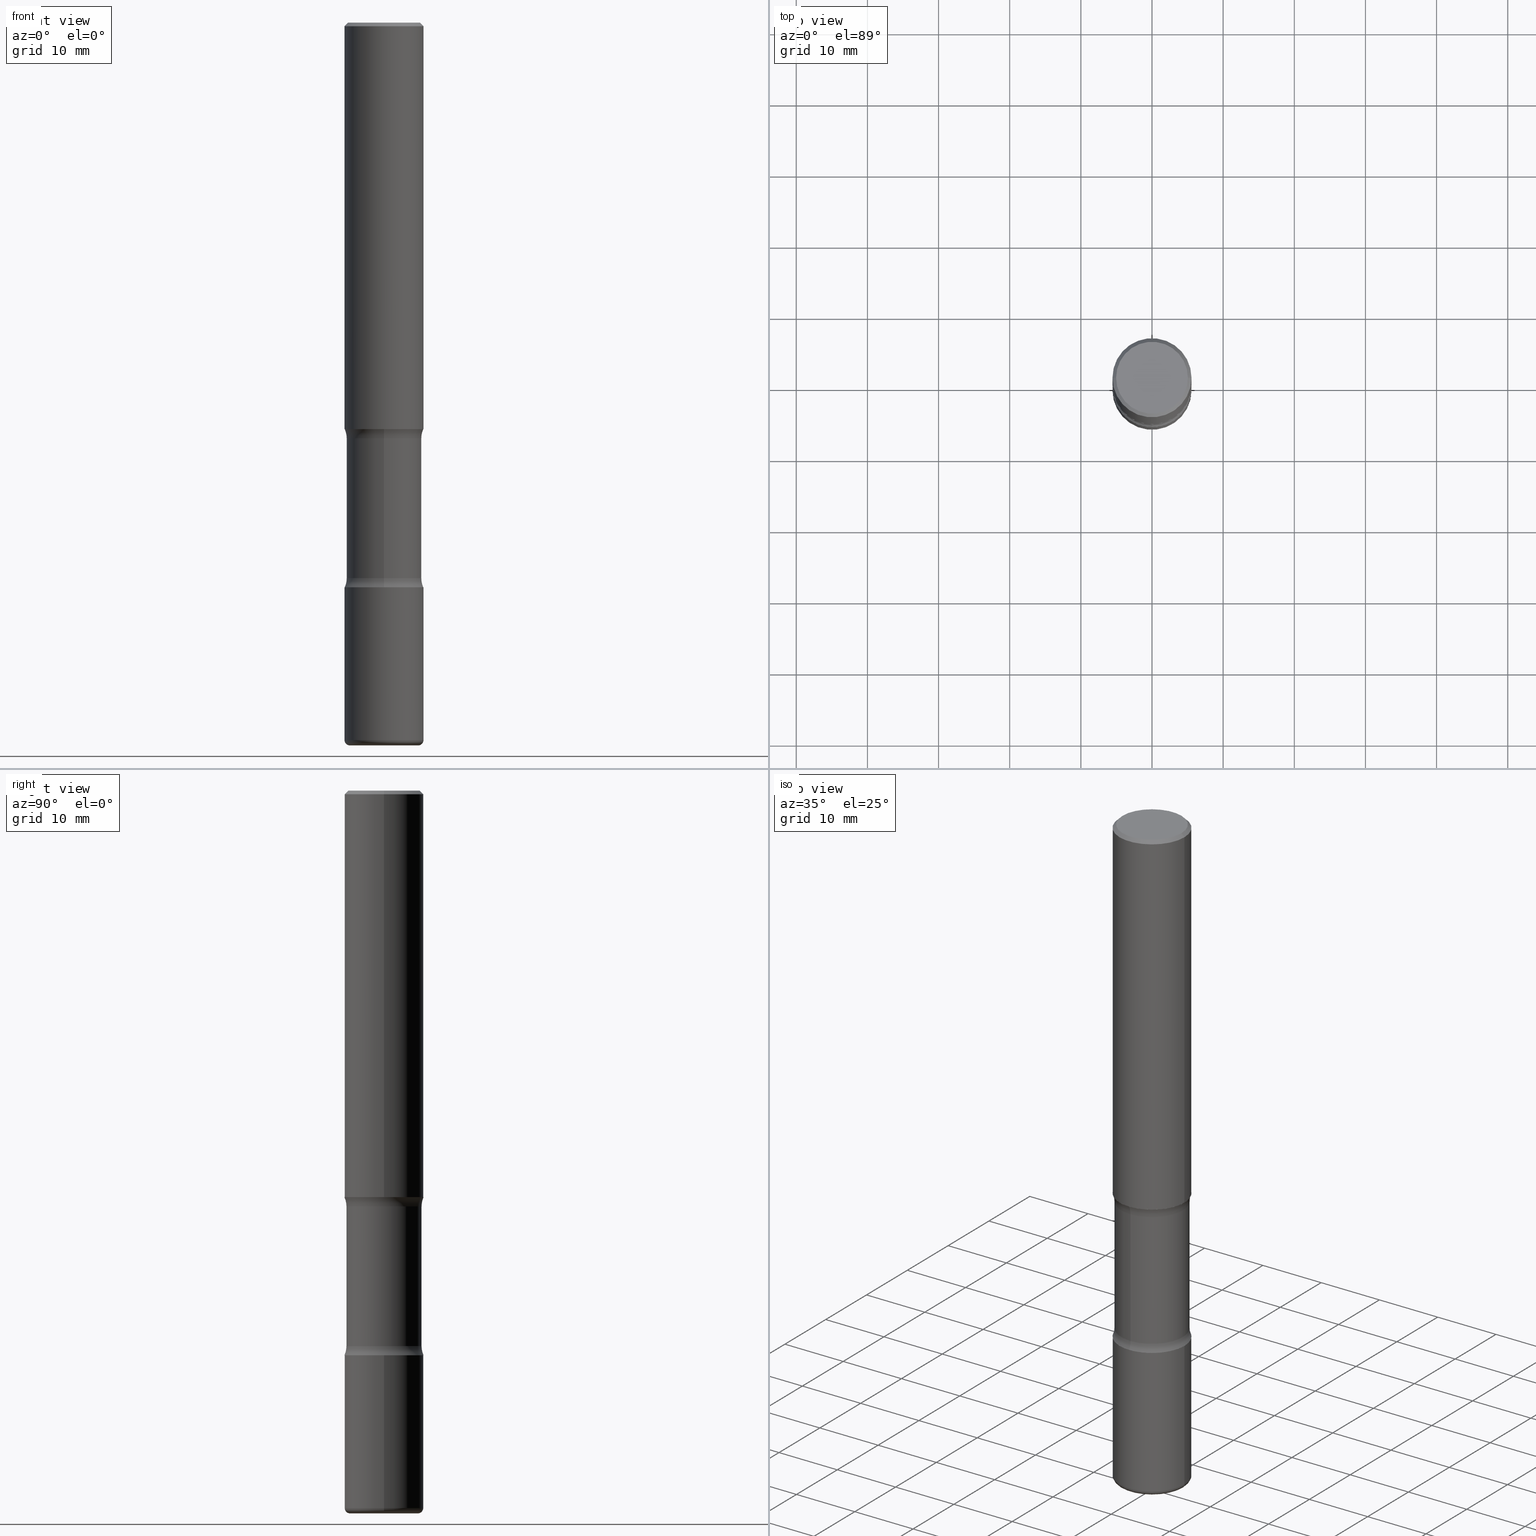
[diagram: canonical four-view strip — front | top / right | iso, engineering-drawing reading convention]
A machine part, canonical four-view strip (front | top / right | iso — engineering-drawing reading convention). The complete STEP part file that produces these views, byte-faithful:
ISO-10303-21;
HEADER;
FILE_DESCRIPTION (( 'STEP AP203' ),
    '1' );
FILE_NAME ('37863.STEP',
    '2024-03-02T00:53:10',
    ( '' ),
    ( '' ),
    'SwSTEP 2.0',
    'SolidWorks 2023',
    '' );
FILE_SCHEMA (( 'CONFIG_CONTROL_DESIGN' ));
ENDSEC;

DATA;
#1 = DIRECTION ( 'NONE',  ( -2.445468806185136597E-29, 3.491481338843145583E-15, 1.000000000000000000 ) ) ;
#2 = CARTESIAN_POINT ( 'NONE',  ( 0.2187500000000001943, -1.243840226962869808E-14, -3.124999999999999112 ) ) ;
#3 = CARTESIAN_POINT ( 'NONE',  ( 0.000000000000000000, 0.000000000000000000, 0.000000000000000000 ) ) ;
#4 = DIRECTION ( 'NONE',  ( 1.000000000000000000, -6.860497997771530774E-15, 4.842500725038393941E-29 ) ) ;
#5 = ADVANCED_FACE ( 'NONE', ( #468 ), #433, .T. ) ;
#6 = DIRECTION ( 'NONE',  ( 1.000000000000000000, -6.982962677686266711E-15, 0.000000000000000000 ) ) ;
#7 = CIRCLE ( 'NONE', #79, 0.1250000000000000278 ) ;
#8 = DIRECTION ( 'NONE',  ( -2.445468806185136597E-29, 3.491481338843145583E-15, 1.000000000000000000 ) ) ;
#9 = CYLINDRICAL_SURFACE ( 'NONE', #18, 0.2187500000000002220 ) ;
#10 =( NAMED_UNIT ( * ) SI_UNIT ( $, .STERADIAN. ) SOLID_ANGLE_UNIT ( ) );
#11 = PERSON_AND_ORGANIZATION_ROLE ( 'creator' ) ;
#12 = AXIS2_PLACEMENT_3D ( 'NONE', #475, #530, #78 ) ;
#13 = EDGE_CURVE ( 'NONE', #329, #360, #195, .T. ) ;
#14 = VERTEX_POINT ( 'NONE', #480 ) ;
#15 = PERSON_AND_ORGANIZATION_ROLE ( 'classification_officer' ) ;
#16 = DATE_AND_TIME ( #532, #457 ) ;
#17 = AXIS2_PLACEMENT_3D ( 'NONE', #175, #301, #221 ) ;
#18 = AXIS2_PLACEMENT_3D ( 'NONE', #518, #385, #352 ) ;
#19 = ORIENTED_EDGE ( 'NONE', *, *, #423, .T. ) ;
#20 = AXIS2_PLACEMENT_3D ( 'NONE', #341, #1, #514 ) ;
#21 = ORIENTED_EDGE ( 'NONE', *, *, #134, .F. ) ;
#22 = ORIENTED_EDGE ( 'NONE', *, *, #516, .T. ) ;
#23 = CARTESIAN_POINT ( 'NONE',  ( 5.502304813916556222E-29, -7.855833012397075293E-15, -2.249999999999999556 ) ) ;
#24 = ORIENTED_EDGE ( 'NONE', *, *, #198, .T. ) ;
#25 = CARTESIAN_POINT ( 'NONE',  ( 1.451146931456752440E-15, 0.2078124999999892975, -3.073865411962644068 ) ) ;
#26 = VERTEX_POINT ( 'NONE', #173 ) ;
#27 = CIRCLE ( 'NONE', #12, 0.2187500000000001388 ) ;
#28 = CIRCLE ( 'NONE', #45, 0.2187500000000002220 ) ;
#29 = CARTESIAN_POINT ( 'NONE',  ( 1.696516779868644984E-29, -2.554461883845289462E-14, -4.000000000000000000 ) ) ;
#30 = CARTESIAN_POINT ( 'NONE',  ( 0.2187500000000003608, -1.538870400095116217E-14, -3.970000000000000195 ) ) ;
#31 = ORIENTED_EDGE ( 'NONE', *, *, #355, .F. ) ;
#32 = FACE_OUTER_BOUND ( 'NONE', #163, .T. ) ;
#33 = ORIENTED_EDGE ( 'NONE', *, *, #55, .F. ) ;
#34 = EDGE_CURVE ( 'NONE', #544, #288, #349, .T. ) ;
#35 = DIRECTION ( 'NONE',  ( 6.982962677686265922E-15, 1.000000000000000000, -2.497689594207324005E-15 ) ) ;
#36 = PLANE ( 'NONE',  #503 ) ;
#37 = DIRECTION ( 'NONE',  ( 6.982962677686265922E-15, 1.000000000000000000, -2.497689594207324005E-15 ) ) ;
#38 = CYLINDRICAL_SURFACE ( 'NONE', #276, 0.2078125000000000111 ) ;
#39 = CYLINDRICAL_SURFACE ( 'NONE', #152, 0.2187500000000002220 ) ;
#40 = PRODUCT_RELATED_PRODUCT_CATEGORY ( 'detail', '', ( #481 ) ) ;
#41 = DIRECTION ( 'NONE',  ( 1.000000000000000000, -6.982962677686261977E-15, 0.000000000000000000 ) ) ;
#42 = CARTESIAN_POINT ( 'NONE',  ( 1.451146931456775908E-15, 0.2078124999999861888, -4.000000000000000888 ) ) ;
#43 = DIRECTION ( 'NONE',  ( 2.542508401758147997E-29, -3.352515114831814446E-15, -1.000000000000000000 ) ) ;
#44 = AXIS2_PLACEMENT_3D ( 'NONE', #264, #262, #41 ) ;
#45 = AXIS2_PLACEMENT_3D ( 'NONE', #62, #550, #455 ) ;
#46 = CARTESIAN_POINT ( 'NONE',  ( -0.2187500000000001943, -1.083171781507083697E-14, -3.124999999999999112 ) ) ;
#47 = CARTESIAN_POINT ( 'NONE',  ( 0.000000000000000000, 0.000000000000000000, 0.000000000000000000 ) ) ;
#48 = APPROVAL_STATUS ( 'not_yet_approved' ) ;
#49 = VECTOR ( 'NONE', #334, 39.37007874015748143 ) ;
#50 = VECTOR ( 'NONE', #424, 39.37007874015748143 ) ;
#51 = APPROVAL_STATUS ( 'not_yet_approved' ) ;
#52 = EDGE_CURVE ( 'NONE', #316, #26, #319, .T. ) ;
#53 = EDGE_CURVE ( 'NONE', #241, #14, #274, .T. ) ;
#54 = AXIS2_PLACEMENT_3D ( 'NONE', #102, #258, #389 ) ;
#55 = EDGE_CURVE ( 'NONE', #332, #204, #438, .T. ) ;
#56 = EDGE_LOOP ( 'NONE', ( #378, #24, #162, #376 ) ) ;
#57 = EDGE_CURVE ( 'NONE', #204, #273, #556, .T. ) ;
#58 = PRODUCT_DEFINITION_FORMATION_WITH_SPECIFIED_SOURCE ( 'ANY', '', #481, .NOT_KNOWN. ) ;
#59 = CC_DESIGN_PERSON_AND_ORGANIZATION_ASSIGNMENT ( #95, #190, ( #481 ) ) ;
#60 = VERTEX_POINT ( 'NONE', #2 ) ;
#61 = CARTESIAN_POINT ( 'NONE',  ( 7.517041979366069235E-29, -1.073234372398296787E-14, -3.073865411962643623 ) ) ;
#62 = CARTESIAN_POINT ( 'NONE',  ( 9.708511160554992872E-29, -1.386118091520728738E-14, -3.970000000000000195 ) ) ;
#63 = ORIENTED_EDGE ( 'NONE', *, *, #34, .T. ) ;
#64 = EDGE_LOOP ( 'NONE', ( #500, #541, #19, #248 ) ) ;
#65 = DIRECTION ( 'NONE',  ( -6.982962677686266711E-15, -1.000000000000000000, 3.491481338843145583E-15 ) ) ;
#66 = ORIENTED_EDGE ( 'NONE', *, *, #55, .T. ) ;
#67 = AXIS2_PLACEMENT_3D ( 'NONE', #216, #523, #37 ) ;
#68 = AXIS2_PLACEMENT_3D ( 'NONE', #522, #156, #268 ) ;
#69 = DIRECTION ( 'NONE',  ( -2.445468806185136877E-29, 3.491481338843145188E-15, 1.000000000000000000 ) ) ;
#70 = APPROVAL ( #51, 'UNSPECIFIED' ) ;
#71 = ORIENTED_EDGE ( 'NONE', *, *, #13, .T. ) ;
#72 = CARTESIAN_POINT ( 'NONE',  ( 0.1987499999999998157, -1.467043770423237861E-15, 9.982525199991778089E-30 ) ) ;
#73 = CARTESIAN_POINT ( 'NONE',  ( -1.425697240161797519E-15, -0.2078125000000138334, -3.999999999999999556 ) ) ;
#74 = CARTESIAN_POINT ( 'NONE',  ( -0.2187500000000001388, -2.408519085111747378E-15, -2.249999999999999556 ) ) ;
#75 = ORIENTED_EDGE ( 'NONE', *, *, #261, .F. ) ;
#76 = CARTESIAN_POINT ( 'NONE',  ( 5.547405287495589114E-29, -8.148857937692923452E-15, -2.301134588037355044 ) ) ;
#77 = FACE_OUTER_BOUND ( 'NONE', #335, .T. ) ;
#78 = DIRECTION ( 'NONE',  ( 1.000000000000000000, -6.982962677686263555E-15, 0.000000000000000000 ) ) ;
#79 = AXIS2_PLACEMENT_3D ( 'NONE', #119, #247, #330 ) ;
#80 =( NAMED_UNIT ( * ) PLANE_ANGLE_UNIT ( ) SI_UNIT ( $, .RADIAN. ) );
#81 = EDGE_CURVE ( 'NONE', #332, #544, #223, .T. ) ;
#82 = FACE_OUTER_BOUND ( 'NONE', #189, .T. ) ;
#83 = CARTESIAN_POINT ( 'NONE',  ( -1.463215588587155192E-15, -0.2078125000000081712, -2.301134588037354156 ) ) ;
#84 = DIRECTION ( 'NONE',  ( 1.000000000000000000, -6.982962677686265133E-15, 0.000000000000000000 ) ) ;
#85 = LINE ( 'NONE', #558, #165 ) ;
#86 = CARTESIAN_POINT ( 'NONE',  ( 0.000000000000000000, 0.000000000000000000, 0.000000000000000000 ) ) ;
#87 = EDGE_CURVE ( 'NONE', #116, #553, #325, .T. ) ;
#88 = CARTESIAN_POINT ( 'NONE',  ( 5.417395167790170756E-29, -7.977428458406990284E-15, -2.249999999999999556 ) ) ;
#89 = AXIS2_PLACEMENT_3D ( 'NONE', #86, #482, #441 ) ;
#90 = AXIS2_PLACEMENT_3D ( 'NONE', #3, #171, #344 ) ;
#91 = APPROVAL_PERSON_ORGANIZATION ( #445, #397, #398 ) ;
#92 = ORIENTED_EDGE ( 'NONE', *, *, #280, .T. ) ;
#93 = COORDINATED_UNIVERSAL_TIME_OFFSET ( 5, 0, .BEHIND. ) ;
#94 = PERSON_AND_ORGANIZATION ( #440, #351 ) ;
#95 = PERSON_AND_ORGANIZATION ( #440, #351 ) ;
#96 = CIRCLE ( 'NONE', #420, 0.2187500000000001943 ) ;
#97 = CIRCLE ( 'NONE', #444, 0.2187500000000001943 ) ;
#98 = CC_DESIGN_SECURITY_CLASSIFICATION ( #166, ( #58 ) ) ;
#99 = APPROVAL_DATE_TIME ( #234, #70 ) ;
#100 = FACE_OUTER_BOUND ( 'NONE', #281, .T. ) ;
#101 = ORIENTED_EDGE ( 'NONE', *, *, #87, .F. ) ;
#102 = CARTESIAN_POINT ( 'NONE',  ( 5.579661872426862939E-29, -8.102664672140540691E-15, -2.301134588037355044 ) ) ;
#103 = ORIENTED_EDGE ( 'NONE', *, *, #317, .T. ) ;
#104 = ORIENTED_EDGE ( 'NONE', *, *, #145, .T. ) ;
#105 = AXIS2_PLACEMENT_3D ( 'NONE', #311, #126, #477 ) ;
#106 = DIRECTION ( 'NONE',  ( -2.445468806185136597E-29, 3.491481338843145583E-15, 1.000000000000000000 ) ) ;
#107 = CIRCLE ( 'NONE', #117, 0.2187499999999998890 ) ;
#108 = ORIENTED_EDGE ( 'NONE', *, *, #529, .F. ) ;
#109 = DIRECTION ( 'NONE',  ( 2.542508401758147997E-29, -3.352515114831814446E-15, -1.000000000000000000 ) ) ;
#110 = CARTESIAN_POINT ( 'NONE',  ( 9.866784870866931853E-29, -1.384432990936266734E-14, -4.000000000000000000 ) ) ;
#111 = ORIENTED_EDGE ( 'NONE', *, *, #53, .F. ) ;
#112 = EDGE_CURVE ( 'NONE', #14, #241, #338, .T. ) ;
#113 = CARTESIAN_POINT ( 'NONE',  ( -0.1887500000000002787, -1.246582231117873082E-14, -4.000000000000000888 ) ) ;
#114 = DIRECTION ( 'NONE',  ( -2.445468806185136597E-29, 3.491481338843145583E-15, 1.000000000000000000 ) ) ;
#115 = CARTESIAN_POINT ( 'NONE',  ( 0.2187500000000000278, -1.527523085743871040E-15, 1.066663669705361025E-29 ) ) ;
#116 = VERTEX_POINT ( 'NONE', #527 ) ;
#117 = AXIS2_PLACEMENT_3D ( 'NONE', #510, #506, #375 ) ;
#118 = CARTESIAN_POINT ( 'NONE',  ( 1.527523085743927049E-15, 0.2187499999999923117, -2.250000000000000444 ) ) ;
#119 = CARTESIAN_POINT ( 'NONE',  ( 2.324017266167516057E-15, 0.3328124999999918510, -2.301134588037356377 ) ) ;
#120 = ORIENTED_EDGE ( 'NONE', *, *, #277, .F. ) ;
#121 = DIRECTION ( 'NONE',  ( -1.000000000000000000, 7.105427357601001859E-15, 0.000000000000000000 ) ) ;
#122 = DIRECTION ( 'NONE',  ( 2.542508401758147997E-29, -3.352515114831814446E-15, -1.000000000000000000 ) ) ;
#123 = ADVANCED_FACE ( 'NONE', ( #130 ), #502, .F. ) ;
#124 = CARTESIAN_POINT ( 'NONE',  ( 0.2187499999999998890, -1.570563563789384841E-15, -0.02000000000000006981 ) ) ;
#125 = EDGE_CURVE ( 'NONE', #411, #446, #27, .T. ) ;
#126 = DIRECTION ( 'NONE',  ( 2.542508401758147997E-29, -3.352515114831814446E-15, -1.000000000000000000 ) ) ;
#127 = AXIS2_PLACEMENT_3D ( 'NONE', #554, #559, #512 ) ;
#128 = CIRCLE ( 'NONE', #224, 0.2187500000000001388 ) ;
#129 = CARTESIAN_POINT ( 'NONE',  ( 1.309248789957701946E-28, -3.105599201986939029E-15, -3.124999999999999112 ) ) ;
#130 = FACE_OUTER_BOUND ( 'NONE', #507, .T. ) ;
#131 = DIRECTION ( 'NONE',  ( -1.000000000000000000, 6.982962677686265922E-15, -4.883557194083112340E-29 ) ) ;
#132 = ADVANCED_FACE ( 'NONE', ( #82 ), #39, .T. ) ;
#133 = CARTESIAN_POINT ( 'NONE',  ( -0.2187499999999998890, 1.457693458967006953E-15, -0.02000000000000006981 ) ) ;
#134 = EDGE_CURVE ( 'NONE', #553, #116, #547, .T. ) ;
#135 = VERTEX_POINT ( 'NONE', #133 ) ;
#136 = AXIS2_PLACEMENT_3D ( 'NONE', #390, #4, #345 ) ;
#137 = DATE_AND_TIME ( #409, #415 ) ;
#138 = CIRCLE ( 'NONE', #476, 0.03000000000000022787 ) ;
#139 = EDGE_CURVE ( 'NONE', #553, #406, #430, .T. ) ;
#140 = CC_DESIGN_PERSON_AND_ORGANIZATION_ASSIGNMENT ( #356, #15, ( #166 ) ) ;
#141 = ORIENTED_EDGE ( 'NONE', *, *, #529, .T. ) ;
#142 = PERSON_AND_ORGANIZATION ( #440, #351 ) ;
#143 = AXIS2_PLACEMENT_3D ( 'NONE', #395, #215, #263 ) ;
#144 = ORIENTED_EDGE ( 'NONE', *, *, #472, .T. ) ;
#145 = EDGE_CURVE ( 'NONE', #60, #324, #96, .T. ) ;
#146 = CARTESIAN_POINT ( 'NONE',  ( 4.890937612370289799E-31, -6.982962677686315028E-17, -0.02000000000000006981 ) ) ;
#147 = EDGE_LOOP ( 'NONE', ( #21, #323, #22, #295 ) ) ;
#148 = ORIENTED_EDGE ( 'NONE', *, *, #134, .T. ) ;
#149 = FACE_OUTER_BOUND ( 'NONE', #56, .T. ) ;
#150 = EDGE_LOOP ( 'NONE', ( #237, #497 ) ) ;
#151 = CARTESIAN_POINT ( 'NONE',  ( 7.642090019328550744E-29, -1.091087918388482645E-14, -3.124999999999999112 ) ) ;
#152 = AXIS2_PLACEMENT_3D ( 'NONE', #259, #254, #437 ) ;
#153 = CARTESIAN_POINT ( 'NONE',  ( 0.000000000000000000, 0.000000000000000000, 0.000000000000000000 ) ) ;
#154 = VECTOR ( 'NONE', #552, 39.37007874015748143 ) ;
#155 = ORIENTED_EDGE ( 'NONE', *, *, #448, .F. ) ;
#156 = DIRECTION ( 'NONE',  ( 2.438088387897960049E-29, -3.491481338843145188E-15, -1.000000000000000000 ) ) ;
#157 = CARTESIAN_POINT ( 'NONE',  ( 0.1887500000000002787, -1.517921512062057228E-14, -3.970000000000000195 ) ) ;
#158 = ORIENTED_EDGE ( 'NONE', *, *, #198, .F. ) ;
#159 = ADVANCED_BREP_SHAPE_REPRESENTATION ( '37863', ( #315, #310, #312, #422 ), #283 ) ;
#160 = APPROVAL ( #404, 'UNSPECIFIED' ) ;
#161 = FACE_OUTER_BOUND ( 'NONE', #546, .T. ) ;
#162 = ORIENTED_EDGE ( 'NONE', *, *, #516, .F. ) ;
#163 = EDGE_LOOP ( 'NONE', ( #362, #408, #66, #535 ) ) ;
#164 = AXIS2_PLACEMENT_3D ( 'NONE', #513, #387, #84 ) ;
#165 = VECTOR ( 'NONE', #296, 39.37007874015748143 ) ;
#166 = SECURITY_CLASSIFICATION ( '', '', #183 ) ;
#167 = DIRECTION ( 'NONE',  ( 6.982962677686265133E-15, 1.000000000000000000, -3.943720411906303717E-15 ) ) ;
#168 = DIRECTION ( 'NONE',  ( 1.000000000000000000, -6.982962677686265922E-15, 4.876176775795935793E-29 ) ) ;
#169 = EDGE_CURVE ( 'NONE', #446, #406, #435, .T. ) ;
#170 = DIRECTION ( 'NONE',  ( 2.542508401758147997E-29, -3.352515114831814446E-15, -1.000000000000000000 ) ) ;
#171 = DIRECTION ( 'NONE',  ( -2.445468806185136597E-29, 3.491481338843145583E-15, 1.000000000000000000 ) ) ;
#172 = PRODUCT_DEFINITION_SHAPE ( 'NONE', 'NONE',  #533 ) ;
#173 = CARTESIAN_POINT ( 'NONE',  ( 1.527523085743948349E-15, 0.2187499999999893141, -3.124999999999999556 ) ) ;
#174 = CARTESIAN_POINT ( 'NONE',  ( 4.890937612370289799E-31, -6.982962677686315028E-17, -0.02000000000000006981 ) ) ;
#175 = CARTESIAN_POINT ( 'NONE',  ( 0.000000000000000000, 0.000000000000000000, 0.000000000000000000 ) ) ;
#176 = AXIS2_PLACEMENT_3D ( 'NONE', #157, #65, #419 ) ;
#177 = AXIS2_PLACEMENT_3D ( 'NONE', #212, #347, #525 ) ;
#178 = LOCAL_TIME ( 19, 53, 10.00000000000000000, #93 ) ;
#179 = DIRECTION ( 'NONE',  ( 1.000000000000000000, -6.982962677686261977E-15, 0.000000000000000000 ) ) ;
#180 = ADVANCED_FACE ( 'NONE', ( #161 ), #470, .F. ) ;
#181 = CC_DESIGN_PERSON_AND_ORGANIZATION_ASSIGNMENT ( #142, #407, ( #533 ) ) ;
#182 = FACE_OUTER_BOUND ( 'NONE', #291, .T. ) ;
#183 = SECURITY_CLASSIFICATION_LEVEL ( 'unclassified' ) ;
#184 = ORIENTED_EDGE ( 'NONE', *, *, #508, .T. ) ;
#185 = AXIS2_PLACEMENT_3D ( 'NONE', #392, #8, #179 ) ;
#186 = CALENDAR_DATE ( 2024, 1, 3 ) ;
#187 = CIRCLE ( 'NONE', #314, 0.2187500000000001943 ) ;
#188 = EDGE_CURVE ( 'NONE', #14, #360, #449, .T. ) ;
#189 = EDGE_LOOP ( 'NONE', ( #367, #71, #199, #120 ) ) ;
#190 = PERSON_AND_ORGANIZATION_ROLE ( 'design_owner' ) ;
#191 = ORIENTED_EDGE ( 'NONE', *, *, #57, .F. ) ;
#192 = COORDINATED_UNIVERSAL_TIME_OFFSET ( 5, 0, .BEHIND. ) ;
#193 = DIRECTION ( 'NONE',  ( 6.982962677686265922E-15, 1.000000000000000000, -3.746534391310985612E-15 ) ) ;
#194 = EDGE_LOOP ( 'NONE', ( #427, #380 ) ) ;
#195 = CIRCLE ( 'NONE', #164, 0.2187500000000002220 ) ;
#196 = CIRCLE ( 'NONE', #143, 0.2187500000000002498 ) ;
#197 = EDGE_LOOP ( 'NONE', ( #246, #101, #461, #229 ) ) ;
#198 = EDGE_CURVE ( 'NONE', #411, #135, #292, .T. ) ;
#199 = ORIENTED_EDGE ( 'NONE', *, *, #400, .T. ) ;
#200 = ORIENTED_EDGE ( 'NONE', *, *, #443, .T. ) ;
#201 = DIRECTION ( 'NONE',  ( -1.000000000000000000, 6.982962677686265922E-15, -4.876176775795935793E-29 ) ) ;
#202 = DIRECTION ( 'NONE',  ( -2.445468806185136597E-29, 3.491481338843145583E-15, 1.000000000000000000 ) ) ;
#203 = CIRCLE ( 'NONE', #493, 0.2078125000000000389 ) ;
#204 = VERTEX_POINT ( 'NONE', #25 ) ;
#205 = CARTESIAN_POINT ( 'NONE',  ( -1.463215588587134090E-15, -0.2078125000000107248, -3.073865411962643179 ) ) ;
#206 = EDGE_LOOP ( 'NONE', ( #158, #370, #459, #31 ) ) ;
#207 = CARTESIAN_POINT ( 'NONE',  ( 5.579661872426862939E-29, -8.102664672140540691E-15, -2.301134588037355044 ) ) ;
#208 = ORIENTED_EDGE ( 'NONE', *, *, #472, .F. ) ;
#209 = DESIGN_CONTEXT ( 'detailed design', #228, 'design' ) ;
#210 = DIRECTION ( 'NONE',  ( -6.982962677686267499E-15, -1.000000000000000000, 0.000000000000000000 ) ) ;
#211 = CARTESIAN_POINT ( 'NONE',  ( 1.309248789957701946E-28, -3.105599201986939029E-15, -3.124999999999999112 ) ) ;
#212 = CARTESIAN_POINT ( 'NONE',  ( 7.512079899623131265E-29, -1.073944970459889485E-14, -3.073865411962643623 ) ) ;
#213 = CARTESIAN_POINT ( 'NONE',  ( 7.642090019328550744E-29, -1.091087918388482645E-14, -3.124999999999999112 ) ) ;
#214 = CC_DESIGN_APPROVAL ( #70, ( #58 ) ) ;
#215 = DIRECTION ( 'NONE',  ( 2.542508401758147997E-29, -3.352515114831814446E-15, -1.000000000000000000 ) ) ;
#216 = CARTESIAN_POINT ( 'NONE',  ( 7.642090019328550744E-29, -1.091087918388482645E-14, -3.124999999999999112 ) ) ;
#217 = PLANE ( 'NONE',  #305 ) ;
#218 = DIRECTION ( 'NONE',  ( 0.7071067811865473507, -7.319954787623256045E-15, -0.7071067811865476838 ) ) ;
#219 = ADVANCED_FACE ( 'NONE', ( #77 ), #426, .T. ) ;
#220 = FACE_OUTER_BOUND ( 'NONE', #206, .T. ) ;
#221 = DIRECTION ( 'NONE',  ( 1.000000000000000000, -6.982962677686266711E-15, 4.876176775795936353E-29 ) ) ;
#222 = ADVANCED_FACE ( 'NONE', ( #32 ), #38, .T. ) ;
#223 = CIRCLE ( 'NONE', #105, 0.2078125000000000389 ) ;
#224 = AXIS2_PLACEMENT_3D ( 'NONE', #23, #106, #285 ) ;
#225 = CARTESIAN_POINT ( 'NONE',  ( 7.642090019328550744E-29, -1.091087918388482645E-14, -3.124999999999999112 ) ) ;
#226 = DIRECTION ( 'NONE',  ( 0.000000000000000000, 0.000000000000000000, 1.000000000000000000 ) ) ;
#227 = DATE_AND_TIME ( #487, #284 ) ;
#228 = APPLICATION_CONTEXT ( 'configuration controlled 3d designs of mechanical parts and assemblies' ) ;
#229 = ORIENTED_EDGE ( 'NONE', *, *, #355, .T. ) ;
#230 = APPLICATION_PROTOCOL_DEFINITION ( 'international standard', 'config_control_design', 1994, #228 ) ;
#231 = CONICAL_SURFACE ( 'NONE', #350, 0.2187499999999998890, 0.7853981633974480570 ) ;
#232 = PERSON_AND_ORGANIZATION_ROLE ( 'design_supplier' ) ;
#233 = EDGE_CURVE ( 'NONE', #116, #135, #549, .T. ) ;
#234 = DATE_AND_TIME ( #447, #494 ) ;
#235 = LINE ( 'NONE', #244, #50 ) ;
#236 = ADVANCED_FACE ( 'NONE', ( #545 ), #429, .F. ) ;
#237 = ORIENTED_EDGE ( 'NONE', *, *, #346, .F. ) ;
#238 = ORIENTED_EDGE ( 'NONE', *, *, #81, .F. ) ;
#239 = CC_DESIGN_PERSON_AND_ORGANIZATION_ASSIGNMENT ( #267, #232, ( #58 ) ) ;
#240 = CARTESIAN_POINT ( 'NONE',  ( 5.502304813916556222E-29, -7.855833012397075293E-15, -2.249999999999999556 ) ) ;
#241 = VERTEX_POINT ( 'NONE', #113 ) ;
#242 = DIRECTION ( 'NONE',  ( 2.438088387897960049E-29, -3.491481338843145188E-15, -1.000000000000000000 ) ) ;
#243 = VECTOR ( 'NONE', #69, 39.37007874015748143 ) ;
#244 = CARTESIAN_POINT ( 'NONE',  ( 0.2187500000000002220, -1.527523085743872421E-15, 1.066663669705362006E-29 ) ) ;
#245 = AXIS2_PLACEMENT_3D ( 'NONE', #61, #122, #290 ) ;
#246 = ORIENTED_EDGE ( 'NONE', *, *, #139, .F. ) ;
#247 = DIRECTION ( 'NONE',  ( -1.000000000000000000, 6.982962677686265922E-15, -4.883557194083112340E-29 ) ) ;
#248 = ORIENTED_EDGE ( 'NONE', *, *, #443, .F. ) ;
#249 = ADVANCED_FACE ( 'NONE', ( #505 ), #485, .F. ) ;
#250 = CARTESIAN_POINT ( 'NONE',  ( -2.283259489883262433E-15, -0.3328125000000107803, -3.073865411962642735 ) ) ;
#251 = ORIENTED_EDGE ( 'NONE', *, *, #145, .F. ) ;
#252 = FACE_OUTER_BOUND ( 'NONE', #340, .T. ) ;
#253 = DIRECTION ( 'NONE',  ( 2.438088387897960049E-29, -3.491481338843145188E-15, -1.000000000000000000 ) ) ;
#254 = DIRECTION ( 'NONE',  ( -2.445468806185136597E-29, 3.491481338843145583E-15, 1.000000000000000000 ) ) ;
#255 = AXIS2_PLACEMENT_3D ( 'NONE', #343, #353, #520 ) ;
#256 = CIRCLE ( 'NONE', #383, 0.2187500000000002498 ) ;
#257 = DIRECTION ( 'NONE',  ( 7.105427357601001859E-15, 1.000000000000000000, -3.491481338843145583E-15 ) ) ;
#258 = DIRECTION ( 'NONE',  ( 2.542508401758147997E-29, -3.352515114831814446E-15, -1.000000000000000000 ) ) ;
#259 = CARTESIAN_POINT ( 'NONE',  ( 0.000000000000000000, 0.000000000000000000, 0.000000000000000000 ) ) ;
#260 = DIRECTION ( 'NONE',  ( -6.982962677686265922E-15, -1.000000000000000000, 3.352515114831814446E-15 ) ) ;
#261 = EDGE_CURVE ( 'NONE', #316, #273, #526, .T. ) ;
#262 = DIRECTION ( 'NONE',  ( -2.445468806185136597E-29, 3.491481338843145583E-15, 1.000000000000000000 ) ) ;
#263 = DIRECTION ( 'NONE',  ( 6.982962677686265922E-15, 1.000000000000000000, -3.746534391310985612E-15 ) ) ;
#264 = CARTESIAN_POINT ( 'NONE',  ( 9.781875224740547508E-29, -1.396592535537258391E-14, -4.000000000000000888 ) ) ;
#265 = AXIS2_PLACEMENT_3D ( 'NONE', #348, #170, #307 ) ;
#266 = AXIS2_PLACEMENT_3D ( 'NONE', #153, #202, #499 ) ;
#267 = PERSON_AND_ORGANIZATION ( #440, #351 ) ;
#268 = DIRECTION ( 'NONE',  ( -1.000000000000000000, 6.982962677686265922E-15, -4.876176775795935793E-29 ) ) ;
#269 = ADVANCED_FACE ( 'NONE', ( #337 ), #401, .F. ) ;
#270 = SHAPE_DEFINITION_REPRESENTATION ( #172, #159 ) ;
#271 = EDGE_CURVE ( 'NONE', #332, #489, #7, .T. ) ;
#272 = PERSON_AND_ORGANIZATION ( #440, #351 ) ;
#273 = VERTEX_POINT ( 'NONE', #205 ) ;
#274 = CIRCLE ( 'NONE', #44, 0.1887500000000002787 ) ;
#275 = PERSON_AND_ORGANIZATION ( #440, #351 ) ;
#276 = AXIS2_PLACEMENT_3D ( 'NONE', #368, #519, #463 ) ;
#277 = EDGE_CURVE ( 'NONE', #324, #60, #187, .T. ) ;
#278 = ORIENTED_EDGE ( 'NONE', *, *, #87, .T. ) ;
#279 = DATE_AND_TIME ( #186, #178 ) ;
#280 = EDGE_CURVE ( 'NONE', #544, #273, #379, .T. ) ;
#281 = EDGE_LOOP ( 'NONE', ( #465, #92, #191, #33 ) ) ;
#282 = EDGE_LOOP ( 'NONE', ( #104, #413 ) ) ;
#283 =( GEOMETRIC_REPRESENTATION_CONTEXT ( 3 ) GLOBAL_UNCERTAINTY_ASSIGNED_CONTEXT ( ( #308 ) ) GLOBAL_UNIT_ASSIGNED_CONTEXT ( ( #432, #80, #10 ) ) REPRESENTATION_CONTEXT ( 'NONE', 'WORKASPACE' ) );
#284 = LOCAL_TIME ( 19, 53, 10.00000000000000000, #192 ) ;
#285 = DIRECTION ( 'NONE',  ( 1.000000000000000000, -6.982962677686263555E-15, 0.000000000000000000 ) ) ;
#286 = ORIENTED_EDGE ( 'NONE', *, *, #365, .F. ) ;
#287 = PLANE ( 'NONE',  #68 ) ;
#288 = VERTEX_POINT ( 'NONE', #300 ) ;
#289 = ORIENTED_EDGE ( 'NONE', *, *, #13, .F. ) ;
#290 = DIRECTION ( 'NONE',  ( 6.982962677686265922E-15, 1.000000000000000000, -3.352515114831814446E-15 ) ) ;
#291 = EDGE_LOOP ( 'NONE', ( #402, #141, #286, #418 ) ) ;
#292 = LINE ( 'NONE', #460, #243 ) ;
#293 = ADVANCED_FACE ( 'NONE', ( #327 ), #36, .F. ) ;
#294 = AXIS2_PLACEMENT_3D ( 'NONE', #207, #109, #515 ) ;
#295 = ORIENTED_EDGE ( 'NONE', *, *, #233, .F. ) ;
#296 = DIRECTION ( 'NONE',  ( -2.445468806185136877E-29, 3.491481338843145188E-15, 1.000000000000000000 ) ) ;
#297 = DIRECTION ( 'NONE',  ( 1.000000000000000000, -6.860497997771530774E-15, 4.842500725038393941E-29 ) ) ;
#298 = ORIENTED_EDGE ( 'NONE', *, *, #57, .T. ) ;
#299 = FACE_OUTER_BOUND ( 'NONE', #194, .T. ) ;
#300 = CARTESIAN_POINT ( 'NONE',  ( -1.500733937012469676E-15, -0.2187500000000082157, -2.249999999999998668 ) ) ;
#301 = DIRECTION ( 'NONE',  ( -2.445468806185136597E-29, 3.491481338843145583E-15, 1.000000000000000000 ) ) ;
#302 = CARTESIAN_POINT ( 'NONE',  ( 0.2187500000000001388, -9.383356098140946925E-15, -2.249999999999999556 ) ) ;
#303 = DIRECTION ( 'NONE',  ( 2.542508401758147997E-29, -3.352515114831814446E-15, -1.000000000000000000 ) ) ;
#304 = VECTOR ( 'NONE', #218, 39.37007874015748143 ) ;
#305 = AXIS2_PLACEMENT_3D ( 'NONE', #129, #309, #260 ) ;
#306 = CARTESIAN_POINT ( 'NONE',  ( -0.1887500000000002787, -1.252003150146009689E-14, -3.970000000000000195 ) ) ;
#307 = DIRECTION ( 'NONE',  ( 6.982962677686265133E-15, 1.000000000000000000, -2.629146941270869802E-15 ) ) ;
#308 = UNCERTAINTY_MEASURE_WITH_UNIT (LENGTH_MEASURE( 1.000000000000000082E-05 ), #432, 'distance_accuracy_value', 'NONE');
#309 = DIRECTION ( 'NONE',  ( -2.542508401758147437E-29, 3.352515114831814446E-15, 1.000000000000000000 ) ) ;
#310 = MANIFOLD_SOLID_BREP ( 'Body-Move/Copy2[2]', #442 ) ;
#311 = CARTESIAN_POINT ( 'NONE',  ( 5.547405287495589114E-29, -8.148857937692923452E-15, -2.301134588037355044 ) ) ;
#312 = MANIFOLD_SOLID_BREP ( 'Body-Move/Copy2[4]', #492 ) ;
#313 = ADVANCED_FACE ( 'NONE', ( #474 ), #287, .F. ) ;
#314 = AXIS2_PLACEMENT_3D ( 'NONE', #151, #509, #377 ) ;
#315 = MANIFOLD_SOLID_BREP ( 'Body-Move/Copy2[1]', #372 ) ;
#316 = VERTEX_POINT ( 'NONE', #405 ) ;
#317 = EDGE_CURVE ( 'NONE', #489, #288, #256, .T. ) ;
#318 = APPROVAL_ROLE ( '' ) ;
#319 = CIRCLE ( 'NONE', #67, 0.2187500000000001943 ) ;
#320 = CIRCLE ( 'NONE', #177, 0.2078125000000000111 ) ;
#321 = EDGE_LOOP ( 'NONE', ( #278, #148 ) ) ;
#322 = DIRECTION ( 'NONE',  ( 2.445468806185136597E-29, -3.491481338843145583E-15, -1.000000000000000000 ) ) ;
#323 = ORIENTED_EDGE ( 'NONE', *, *, #139, .T. ) ;
#324 = VERTEX_POINT ( 'NONE', #46 ) ;
#325 = CIRCLE ( 'NONE', #17, 0.1987499999999998157 ) ;
#326 = AXIS2_PLACEMENT_3D ( 'NONE', #174, #391, #6 ) ;
#327 = FACE_OUTER_BOUND ( 'NONE', #150, .T. ) ;
#328 = APPROVAL_PERSON_ORGANIZATION ( #94, #160, #534 ) ;
#329 = VERTEX_POINT ( 'NONE', #396 ) ;
#330 = DIRECTION ( 'NONE',  ( -6.982962677686265133E-15, -1.000000000000000000, 0.000000000000000000 ) ) ;
#331 = CYLINDRICAL_SURFACE ( 'NONE', #266, 0.2187500000000000278 ) ;
#332 = VERTEX_POINT ( 'NONE', #366 ) ;
#333 = ADVANCED_FACE ( 'NONE', ( #149 ), #331, .T. ) ;
#334 = DIRECTION ( 'NONE',  ( -2.445468806185136877E-29, 3.491481338843145188E-15, 1.000000000000000000 ) ) ;
#335 = EDGE_LOOP ( 'NONE', ( #471, #111 ) ) ;
#336 = CC_DESIGN_DATE_AND_TIME_ASSIGNMENT ( #227, #363, ( #166 ) ) ;
#337 = FACE_OUTER_BOUND ( 'NONE', #364, .T. ) ;
#338 = CIRCLE ( 'NONE', #185, 0.1887500000000002787 ) ;
#339 = AXIS2_PLACEMENT_3D ( 'NONE', #110, #453, #369 ) ;
#340 = EDGE_LOOP ( 'NONE', ( #359, #184, #251, #551 ) ) ;
#341 = CARTESIAN_POINT ( 'NONE',  ( 9.708511160554992872E-29, -1.386118091520728738E-14, -3.970000000000000195 ) ) ;
#342 = DIRECTION ( 'NONE',  ( -0.7071067811865473507, 2.468850131082255088E-15, -0.7071067811865476838 ) ) ;
#343 = CARTESIAN_POINT ( 'NONE',  ( 7.517041979366069235E-29, -1.073234372398296787E-14, -3.073865411962643623 ) ) ;
#344 = DIRECTION ( 'NONE',  ( 1.000000000000000000, -6.982962677686266711E-15, 4.876176775795935232E-29 ) ) ;
#345 = DIRECTION ( 'NONE',  ( 6.860497997771532351E-15, 1.000000000000000000, 0.000000000000000000 ) ) ;
#346 = EDGE_CURVE ( 'NONE', #446, #411, #128, .T. ) ;
#347 = DIRECTION ( 'NONE',  ( 2.542508401758147997E-29, -3.352515114831814446E-15, -1.000000000000000000 ) ) ;
#348 = CARTESIAN_POINT ( 'NONE',  ( 7.512079899623131265E-29, -1.073944970459889485E-14, -3.073865411962643623 ) ) ;
#349 = CIRCLE ( 'NONE', #136, 0.1250000000000000278 ) ;
#350 = AXIS2_PLACEMENT_3D ( 'NONE', #146, #322, #458 ) ;
#351 = ORGANIZATION ( 'UNSPECIFIED', 'UNSPECIFIED', '' ) ;
#352 = DIRECTION ( 'NONE',  ( 1.000000000000000000, -6.982962677686266711E-15, 4.876176775795935793E-29 ) ) ;
#353 = DIRECTION ( 'NONE',  ( 2.542508401758147997E-29, -3.352515114831814446E-15, -1.000000000000000000 ) ) ;
#354 = COORDINATED_UNIVERSAL_TIME_OFFSET ( 5, 0, .BEHIND. ) ;
#355 = EDGE_CURVE ( 'NONE', #135, #406, #107, .T. ) ;
#356 = PERSON_AND_ORGANIZATION ( #440, #351 ) ;
#357 = ORIENTED_EDGE ( 'NONE', *, *, #188, .T. ) ;
#358 = CIRCLE ( 'NONE', #326, 0.2187499999999998890 ) ;
#359 = ORIENTED_EDGE ( 'NONE', *, *, #365, .T. ) ;
#360 = VERTEX_POINT ( 'NONE', #30 ) ;
#361 = ADVANCED_FACE ( 'NONE', ( #100 ), #543, .T. ) ;
#362 = ORIENTED_EDGE ( 'NONE', *, *, #280, .F. ) ;
#363 = DATE_TIME_ROLE ( 'classification_date' ) ;
#364 = EDGE_LOOP ( 'NONE', ( #450, #238, #486, #103 ) ) ;
#365 = EDGE_CURVE ( 'NONE', #360, #329, #28, .T. ) ;
#366 = CARTESIAN_POINT ( 'NONE',  ( 1.451146931456732915E-15, 0.2078124999999918787, -2.301134588037355932 ) ) ;
#367 = ORIENTED_EDGE ( 'NONE', *, *, #508, .F. ) ;
#368 = CARTESIAN_POINT ( 'NONE',  ( 9.866784870866931853E-29, -1.384432990936266734E-14, -4.000000000000000000 ) ) ;
#369 = DIRECTION ( 'NONE',  ( 6.982962677686265133E-15, 1.000000000000000000, -2.629146941270869802E-15 ) ) ;
#370 = ORIENTED_EDGE ( 'NONE', *, *, #125, .T. ) ;
#371 = APPLICATION_CONTEXT ( 'configuration controlled 3d designs of mechanical parts and assemblies' ) ;
#372 = CLOSED_SHELL ( 'NONE', ( #479, #488, #219, #5, #132, #236 ) ) ;
#373 = TOROIDAL_SURFACE ( 'NONE', #20, 0.1887500000000002787, 0.03000000000000022787 ) ;
#374 = CARTESIAN_POINT ( 'NONE',  ( -0.2187499999999998890, 1.457693458967006953E-15, -0.02000000000000006981 ) ) ;
#375 = DIRECTION ( 'NONE',  ( 1.000000000000000000, -6.982962677686266711E-15, 0.000000000000000000 ) ) ;
#376 = ORIENTED_EDGE ( 'NONE', *, *, #169, .F. ) ;
#377 = DIRECTION ( 'NONE',  ( 1.000000000000000000, -6.982962677686265922E-15, 0.000000000000000000 ) ) ;
#378 = ORIENTED_EDGE ( 'NONE', *, *, #346, .T. ) ;
#379 = LINE ( 'NONE', #73, #154 ) ;
#380 = ORIENTED_EDGE ( 'NONE', *, *, #52, .T. ) ;
#381 = DIRECTION ( 'NONE',  ( 2.445468806185136597E-29, -3.491481338843145583E-15, -1.000000000000000000 ) ) ;
#382 = DIRECTION ( 'NONE',  ( -2.438088387897960049E-29, 3.491481338843145188E-15, 1.000000000000000000 ) ) ;
#383 = AXIS2_PLACEMENT_3D ( 'NONE', #88, #491, #193 ) ;
#384 = DIRECTION ( 'NONE',  ( -2.445468806185136597E-29, 3.491481338843145583E-15, 1.000000000000000000 ) ) ;
#385 = DIRECTION ( 'NONE',  ( -2.445468806185136597E-29, 3.491481338843145583E-15, 1.000000000000000000 ) ) ;
#386 = ADVANCED_FACE ( 'NONE', ( #464 ), #231, .T. ) ;
#387 = DIRECTION ( 'NONE',  ( -2.445468806185136597E-29, 3.491481338843145583E-15, 1.000000000000000000 ) ) ;
#388 = CYLINDRICAL_SURFACE ( 'NONE', #90, 0.2187500000000000278 ) ;
#389 = DIRECTION ( 'NONE',  ( 6.982962677686265922E-15, 1.000000000000000000, -3.352515114831814446E-15 ) ) ;
#390 = CARTESIAN_POINT ( 'NONE',  ( -2.283259489883281366E-15, -0.3328125000000081157, -2.301134588037354156 ) ) ;
#391 = DIRECTION ( 'NONE',  ( -2.445468806185136597E-29, 3.491481338843145583E-15, 1.000000000000000000 ) ) ;
#392 = CARTESIAN_POINT ( 'NONE',  ( 9.781875224740547508E-29, -1.396592535537258391E-14, -4.000000000000000888 ) ) ;
#393 = CIRCLE ( 'NONE', #414, 0.1250000000000000278 ) ;
#394 = CC_DESIGN_APPROVAL ( #397, ( #166 ) ) ;
#395 = CARTESIAN_POINT ( 'NONE',  ( 5.417395167790170756E-29, -7.977428458406990284E-15, -2.249999999999999556 ) ) ;
#396 = CARTESIAN_POINT ( 'NONE',  ( -0.2187500000000003608, -1.230686868073206507E-14, -3.970000000000000195 ) ) ;
#397 = APPROVAL ( #48, 'UNSPECIFIED' ) ;
#398 = APPROVAL_ROLE ( '' ) ;
#399 = COORDINATED_UNIVERSAL_TIME_OFFSET ( 5, 0, .BEHIND. ) ;
#400 = EDGE_CURVE ( 'NONE', #360, #60, #235, .T. ) ;
#401 = TOROIDAL_SURFACE ( 'NONE', #294, 0.3328124999999999556, 0.1250000000000000278 ) ;
#402 = ORIENTED_EDGE ( 'NONE', *, *, #112, .T. ) ;
#403 = ADVANCED_FACE ( 'NONE', ( #417 ), #548, .F. ) ;
#404 = APPROVAL_STATUS ( 'not_yet_approved' ) ;
#405 = CARTESIAN_POINT ( 'NONE',  ( -1.500733937012446996E-15, -0.2187500000000110745, -3.124999999999998668 ) ) ;
#406 = VERTEX_POINT ( 'NONE', #410 ) ;
#407 = PERSON_AND_ORGANIZATION_ROLE ( 'creator' ) ;
#408 = ORIENTED_EDGE ( 'NONE', *, *, #448, .T. ) ;
#409 = CALENDAR_DATE ( 2024, 1, 3 ) ;
#410 = CARTESIAN_POINT ( 'NONE',  ( 0.2187499999999998890, -1.570563563789384841E-15, -0.02000000000000006981 ) ) ;
#411 = VERTEX_POINT ( 'NONE', #74 ) ;
#412 = AXIS2_PLACEMENT_3D ( 'NONE', #511, #114, #555 ) ;
#413 = ORIENTED_EDGE ( 'NONE', *, *, #277, .T. ) ;
#414 = AXIS2_PLACEMENT_3D ( 'NONE', #428, #131, #210 ) ;
#415 = LOCAL_TIME ( 19, 53, 10.00000000000000000, #399 ) ;
#416 = ORIENTED_EDGE ( 'NONE', *, *, #452, .F. ) ;
#417 = FACE_OUTER_BOUND ( 'NONE', #537, .T. ) ;
#418 = ORIENTED_EDGE ( 'NONE', *, *, #188, .F. ) ;
#419 = DIRECTION ( 'NONE',  ( 1.000000000000000000, -6.982962677686280121E-15, 0.000000000000000000 ) ) ;
#420 = AXIS2_PLACEMENT_3D ( 'NONE', #213, #384, #560 ) ;
#421 = DIRECTION ( 'NONE',  ( -1.000000000000000000, 6.982962677686265922E-15, -4.876176775795935793E-29 ) ) ;
#422 = AXIS2_PLACEMENT_3D ( 'NONE', #47, #226, #538 ) ;
#423 = EDGE_CURVE ( 'NONE', #273, #204, #320, .T. ) ;
#424 = DIRECTION ( 'NONE',  ( -2.445468806185136877E-29, 3.491481338843145188E-15, 1.000000000000000000 ) ) ;
#425 = EDGE_LOOP ( 'NONE', ( #108, #517, #357, #289 ) ) ;
#426 = PLANE ( 'NONE',  #539 ) ;
#427 = ORIENTED_EDGE ( 'NONE', *, *, #452, .T. ) ;
#428 = CARTESIAN_POINT ( 'NONE',  ( 2.324017266167535779E-15, 0.3328124999999892975, -3.073865411962644956 ) ) ;
#429 = PLANE ( 'NONE',  #540 ) ;
#430 = LINE ( 'NONE', #124, #304 ) ;
#431 = CC_DESIGN_DATE_AND_TIME_ASSIGNMENT ( #137, #483, ( #533 ) ) ;
#432 =( CONVERSION_BASED_UNIT ( 'INCH', #436 ) LENGTH_UNIT ( ) NAMED_UNIT ( #524 ) );
#433 = TOROIDAL_SURFACE ( 'NONE', #412, 0.1887500000000002787, 0.03000000000000022787 ) ;
#434 = VECTOR ( 'NONE', #342, 39.37007874015748143 ) ;
#435 = LINE ( 'NONE', #115, #49 ) ;
#436 = LENGTH_MEASURE_WITH_UNIT ( LENGTH_MEASURE( 0.02539999999999999897 ), #473 );
#437 = DIRECTION ( 'NONE',  ( 1.000000000000000000, -6.982962677686266711E-15, 4.876176775795935793E-29 ) ) ;
#438 = LINE ( 'NONE', #42, #484 ) ;
#439 = DIRECTION ( 'NONE',  ( -1.000000000000000000, 6.982962677686266711E-15, 0.000000000000000000 ) ) ;
#440 = PERSON ( 'UNSPECIFIED', 'UNSPECIFIED', 'UNSPECIFIED', ('UNSPECIFIED'), ('UNSPECIFIED'), ('UNSPECIFIED') ) ;
#441 = DIRECTION ( 'NONE',  ( 1.000000000000000000, -6.982962677686266711E-15, 4.876176775795936353E-29 ) ) ;
#442 = CLOSED_SHELL ( 'NONE', ( #333, #528, #386, #313, #293, #496 ) ) ;
#443 = EDGE_CURVE ( 'NONE', #26, #204, #393, .T. ) ;
#444 = AXIS2_PLACEMENT_3D ( 'NONE', #225, #43, #35 ) ;
#445 = PERSON_AND_ORGANIZATION ( #440, #351 ) ;
#446 = VERTEX_POINT ( 'NONE', #302 ) ;
#447 = CALENDAR_DATE ( 2024, 1, 3 ) ;
#448 = EDGE_CURVE ( 'NONE', #544, #332, #203, .T. ) ;
#449 = CIRCLE ( 'NONE', #176, 0.03000000000000022787 ) ;
#450 = ORIENTED_EDGE ( 'NONE', *, *, #34, .F. ) ;
#451 = APPROVAL_DATE_TIME ( #16, #160 ) ;
#452 = EDGE_CURVE ( 'NONE', #26, #316, #97, .T. ) ;
#453 = DIRECTION ( 'NONE',  ( 2.542508401758147997E-29, -3.352515114831814446E-15, -1.000000000000000000 ) ) ;
#454 = ORIENTED_EDGE ( 'NONE', *, *, #271, .F. ) ;
#455 = DIRECTION ( 'NONE',  ( 1.000000000000000000, -6.982962677686265133E-15, 0.000000000000000000 ) ) ;
#456 = AXIS2_PLACEMENT_3D ( 'NONE', #478, #381, #439 ) ;
#457 = LOCAL_TIME ( 19, 53, 10.00000000000000000, #495 ) ;
#458 = DIRECTION ( 'NONE',  ( -1.000000000000000000, 6.982962677686266711E-15, 0.000000000000000000 ) ) ;
#459 = ORIENTED_EDGE ( 'NONE', *, *, #169, .T. ) ;
#460 = CARTESIAN_POINT ( 'NONE',  ( -0.2187500000000000278, 1.554312234475219354E-15, -1.076017050993260762E-29 ) ) ;
#461 = ORIENTED_EDGE ( 'NONE', *, *, #233, .T. ) ;
#462 = ADVANCED_FACE ( 'NONE', ( #299 ), #217, .F. ) ;
#463 = DIRECTION ( 'NONE',  ( 6.982962677686265133E-15, 1.000000000000000000, -2.629146941270869802E-15 ) ) ;
#464 = FACE_OUTER_BOUND ( 'NONE', #197, .T. ) ;
#465 = ORIENTED_EDGE ( 'NONE', *, *, #81, .T. ) ;
#466 = AXIS2_PLACEMENT_3D ( 'NONE', #250, #297, #467 ) ;
#467 = DIRECTION ( 'NONE',  ( 6.860497997771532351E-15, 1.000000000000000000, 0.000000000000000000 ) ) ;
#468 = FACE_OUTER_BOUND ( 'NONE', #425, .T. ) ;
#469 = FACE_OUTER_BOUND ( 'NONE', #147, .T. ) ;
#470 = PLANE ( 'NONE',  #127 ) ;
#471 = ORIENTED_EDGE ( 'NONE', *, *, #112, .F. ) ;
#472 = EDGE_CURVE ( 'NONE', #288, #489, #196, .T. ) ;
#473 =( LENGTH_UNIT ( ) NAMED_UNIT ( * ) SI_UNIT ( $, .METRE. ) );
#474 = FACE_OUTER_BOUND ( 'NONE', #321, .T. ) ;
#475 = CARTESIAN_POINT ( 'NONE',  ( 5.502304813916556222E-29, -7.855833012397075293E-15, -2.249999999999999556 ) ) ;
#476 = AXIS2_PLACEMENT_3D ( 'NONE', #306, #257, #121 ) ;
#477 = DIRECTION ( 'NONE',  ( 6.982962677686265133E-15, 1.000000000000000000, -3.943720411906303717E-15 ) ) ;
#478 = CARTESIAN_POINT ( 'NONE',  ( 4.890937612370289799E-31, -6.982962677686315028E-17, -0.02000000000000006981 ) ) ;
#479 = ADVANCED_FACE ( 'NONE', ( #252 ), #9, .T. ) ;
#480 = CARTESIAN_POINT ( 'NONE',  ( 0.1887500000000002787, -1.528395956078586880E-14, -4.000000000000000888 ) ) ;
#481 = PRODUCT ( '37863', '37863', '', ( #490 ) ) ;
#482 = DIRECTION ( 'NONE',  ( -2.445468806185136597E-29, 3.491481338843145583E-15, 1.000000000000000000 ) ) ;
#483 = DATE_TIME_ROLE ( 'creation_date' ) ;
#484 = VECTOR ( 'NONE', #303, 39.37007874015748143 ) ;
#485 = TOROIDAL_SURFACE ( 'NONE', #245, 0.3328125000000000666, 0.1250000000000000555 ) ;
#486 = ORIENTED_EDGE ( 'NONE', *, *, #271, .T. ) ;
#487 = CALENDAR_DATE ( 2024, 1, 3 ) ;
#488 = ADVANCED_FACE ( 'NONE', ( #182 ), #373, .T. ) ;
#489 = VERTEX_POINT ( 'NONE', #118 ) ;
#490 = MECHANICAL_CONTEXT ( 'NONE', #371, 'mechanical' ) ;
#491 = DIRECTION ( 'NONE',  ( 2.542508401758147997E-29, -3.352515114831814446E-15, -1.000000000000000000 ) ) ;
#492 = CLOSED_SHELL ( 'NONE', ( #361, #249, #403, #269, #180, #462, #123, #222 ) ) ;
#493 = AXIS2_PLACEMENT_3D ( 'NONE', #76, #521, #167 ) ;
#494 = LOCAL_TIME ( 19, 53, 10.00000000000000000, #354 ) ;
#495 = COORDINATED_UNIVERSAL_TIME_OFFSET ( 5, 0, .BEHIND. ) ;
#496 = ADVANCED_FACE ( 'NONE', ( #220 ), #388, .T. ) ;
#497 = ORIENTED_EDGE ( 'NONE', *, *, #125, .F. ) ;
#498 = CC_DESIGN_PERSON_AND_ORGANIZATION_ASSIGNMENT ( #275, #11, ( #58 ) ) ;
#499 = DIRECTION ( 'NONE',  ( 1.000000000000000000, -6.982962677686266711E-15, 4.876176775795935232E-29 ) ) ;
#500 = ORIENTED_EDGE ( 'NONE', *, *, #52, .F. ) ;
#501 = ORIENTED_EDGE ( 'NONE', *, *, #317, .F. ) ;
#502 = TOROIDAL_SURFACE ( 'NONE', #255, 0.3328125000000000666, 0.1250000000000000555 ) ;
#503 = AXIS2_PLACEMENT_3D ( 'NONE', #240, #382, #168 ) ;
#504 = CC_DESIGN_APPROVAL ( #160, ( #533 ) ) ;
#505 = FACE_OUTER_BOUND ( 'NONE', #64, .T. ) ;
#506 = DIRECTION ( 'NONE',  ( -2.445468806185136597E-29, 3.491481338843145583E-15, 1.000000000000000000 ) ) ;
#507 = EDGE_LOOP ( 'NONE', ( #75, #416, #200, #298 ) ) ;
#508 = EDGE_CURVE ( 'NONE', #329, #324, #85, .T. ) ;
#509 = DIRECTION ( 'NONE',  ( -2.445468806185136597E-29, 3.491481338843145583E-15, 1.000000000000000000 ) ) ;
#510 = CARTESIAN_POINT ( 'NONE',  ( 4.890937612370289799E-31, -6.982962677686315028E-17, -0.02000000000000006981 ) ) ;
#511 = CARTESIAN_POINT ( 'NONE',  ( 9.708511160554992872E-29, -1.386118091520728738E-14, -3.970000000000000195 ) ) ;
#512 = DIRECTION ( 'NONE',  ( 6.982962677686265922E-15, 1.000000000000000000, -3.352515114831814446E-15 ) ) ;
#513 = CARTESIAN_POINT ( 'NONE',  ( 9.708511160554992872E-29, -1.386118091520728738E-14, -3.970000000000000195 ) ) ;
#514 = DIRECTION ( 'NONE',  ( 1.000000000000000000, -6.982962677686264344E-15, 4.883557194083111780E-29 ) ) ;
#515 = DIRECTION ( 'NONE',  ( 6.982962677686265922E-15, 1.000000000000000000, -3.352515114831814446E-15 ) ) ;
#516 = EDGE_CURVE ( 'NONE', #406, #135, #358, .T. ) ;
#517 = ORIENTED_EDGE ( 'NONE', *, *, #53, .T. ) ;
#518 = CARTESIAN_POINT ( 'NONE',  ( 0.000000000000000000, 0.000000000000000000, 0.000000000000000000 ) ) ;
#519 = DIRECTION ( 'NONE',  ( 2.542508401758147997E-29, -3.352515114831814446E-15, -1.000000000000000000 ) ) ;
#520 = DIRECTION ( 'NONE',  ( 6.982962677686265922E-15, 1.000000000000000000, -3.352515114831814446E-15 ) ) ;
#521 = DIRECTION ( 'NONE',  ( 2.542508401758147997E-29, -3.352515114831814446E-15, -1.000000000000000000 ) ) ;
#522 = CARTESIAN_POINT ( 'NONE',  ( 1.387863832190144049E-15, 0.1987499999999998157, -6.939319160950745885E-16 ) ) ;
#523 = DIRECTION ( 'NONE',  ( 2.542508401758147997E-29, -3.352515114831814446E-15, -1.000000000000000000 ) ) ;
#524 = DIMENSIONAL_EXPONENTS ( 1.000000000000000000, 0.000000000000000000, 0.000000000000000000, 0.000000000000000000, 0.000000000000000000, 0.000000000000000000, 0.000000000000000000 ) ;
#525 = DIRECTION ( 'NONE',  ( 6.982962677686265133E-15, 1.000000000000000000, -2.629146941270869802E-15 ) ) ;
#526 = CIRCLE ( 'NONE', #466, 0.1250000000000000278 ) ;
#527 = CARTESIAN_POINT ( 'NONE',  ( -0.1987499999999998157, 1.422778645578575501E-15, -9.827974342635076689E-30 ) ) ;
#528 = ADVANCED_FACE ( 'NONE', ( #469 ), #557, .T. ) ;
#529 = EDGE_CURVE ( 'NONE', #241, #329, #138, .T. ) ;
#530 = DIRECTION ( 'NONE',  ( -2.445468806185136597E-29, 3.491481338843145583E-15, 1.000000000000000000 ) ) ;
#531 = APPROVAL_DATE_TIME ( #279, #397 ) ;
#532 = CALENDAR_DATE ( 2024, 1, 3 ) ;
#533 = PRODUCT_DEFINITION ( 'UNKNOWN', '', #58, #209 ) ;
#534 = APPROVAL_ROLE ( '' ) ;
#535 = ORIENTED_EDGE ( 'NONE', *, *, #423, .F. ) ;
#536 = APPLICATION_PROTOCOL_DEFINITION ( 'international standard', 'config_control_design', 1994, #371 ) ;
#537 = EDGE_LOOP ( 'NONE', ( #155, #63, #144, #454 ) ) ;
#538 = DIRECTION ( 'NONE',  ( 1.000000000000000000, 0.000000000000000000, 0.000000000000000000 ) ) ;
#539 = AXIS2_PLACEMENT_3D ( 'NONE', #29, #242, #201 ) ;
#540 = AXIS2_PLACEMENT_3D ( 'NONE', #211, #253, #421 ) ;
#541 = ORIENTED_EDGE ( 'NONE', *, *, #261, .T. ) ;
#542 = APPROVAL_PERSON_ORGANIZATION ( #272, #70, #318 ) ;
#543 = CYLINDRICAL_SURFACE ( 'NONE', #339, 0.2078125000000000111 ) ;
#544 = VERTEX_POINT ( 'NONE', #83 ) ;
#545 = FACE_OUTER_BOUND ( 'NONE', #282, .T. ) ;
#546 = EDGE_LOOP ( 'NONE', ( #501, #208 ) ) ;
#547 = CIRCLE ( 'NONE', #89, 0.1987499999999998157 ) ;
#548 = TOROIDAL_SURFACE ( 'NONE', #54, 0.3328124999999999556, 0.1250000000000000278 ) ;
#549 = LINE ( 'NONE', #374, #434 ) ;
#550 = DIRECTION ( 'NONE',  ( -2.445468806185136597E-29, 3.491481338843145583E-15, 1.000000000000000000 ) ) ;
#551 = ORIENTED_EDGE ( 'NONE', *, *, #400, .F. ) ;
#552 = DIRECTION ( 'NONE',  ( 2.542508401758147997E-29, -3.352515114831814446E-15, -1.000000000000000000 ) ) ;
#553 = VERTEX_POINT ( 'NONE', #72 ) ;
#554 = CARTESIAN_POINT ( 'NONE',  ( 5.502304813916556222E-29, -7.855833012397075293E-15, -2.249999999999999556 ) ) ;
#555 = DIRECTION ( 'NONE',  ( 1.000000000000000000, -6.982962677686264344E-15, 4.883557194083111780E-29 ) ) ;
#556 = CIRCLE ( 'NONE', #265, 0.2078125000000000111 ) ;
#557 = CONICAL_SURFACE ( 'NONE', #456, 0.2187499999999998890, 0.7853981633974480570 ) ;
#558 = CARTESIAN_POINT ( 'NONE',  ( -0.2187500000000002220, 1.554312234475220734E-15, -1.076017050993261743E-29 ) ) ;
#559 = DIRECTION ( 'NONE',  ( 2.542508401758147437E-29, -3.352515114831814446E-15, -1.000000000000000000 ) ) ;
#560 = DIRECTION ( 'NONE',  ( 1.000000000000000000, -6.982962677686265922E-15, 0.000000000000000000 ) ) ;
ENDSEC;
END-ISO-10303-21;
